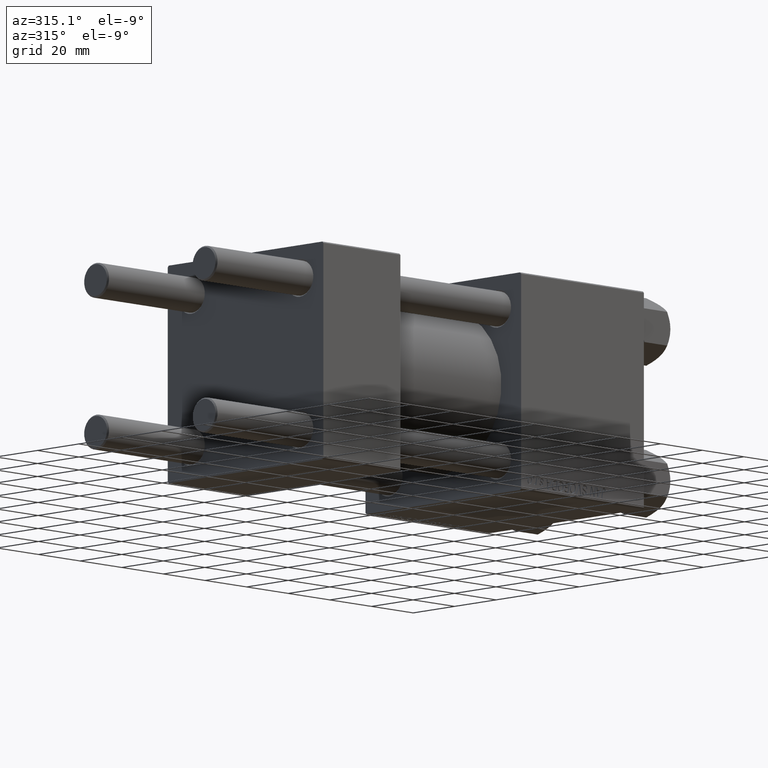
[diagram: clean part render]
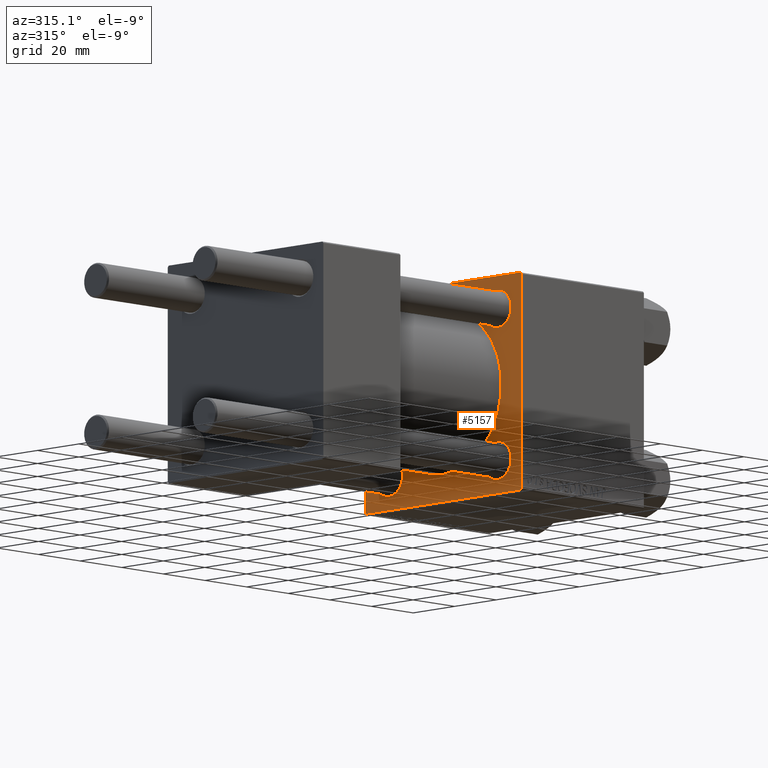
[diagram: same view with one face highlighted and labeled with its STEP entity id]
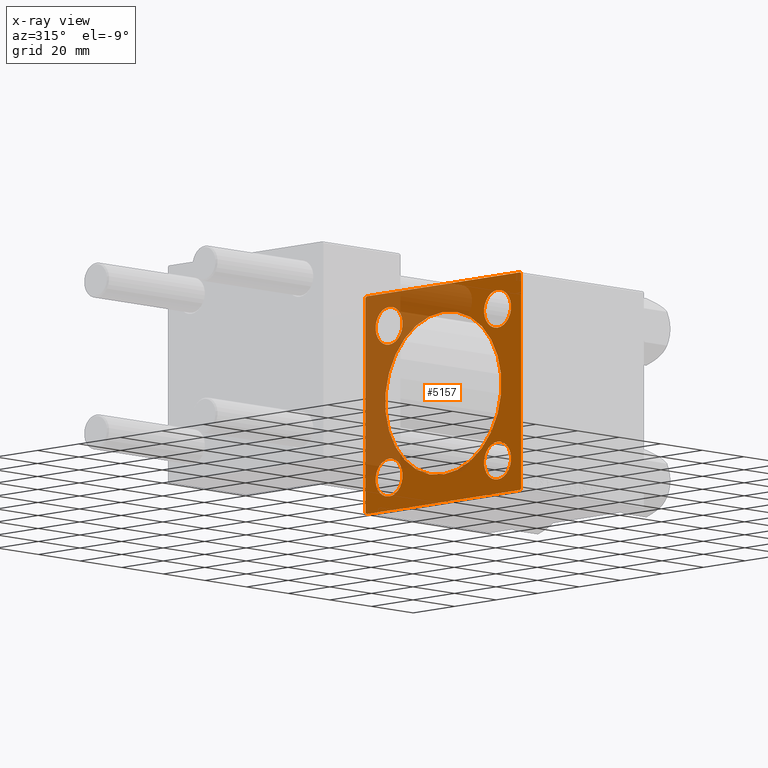
[diagram: x-ray of the same camera — body ghosted, the highlighted face saturated]
A machine part, auxiliary view. The second image highlights one B-rep face of the part: STEP entity #5157.
The next image is the same camera in x-ray: the body ghosted, the highlighted face saturated — about 41% of this face is hidden behind the body in this view.
In plain terms, the highlighted planar face has unit normal (-1, 0, 0).
Its self-contained STEP definition (entity closure, byte-faithful):
#705 = CARTESIAN_POINT ( 'NONE',  ( 95.00000000000000000, -26.14999999999999147, 32.65000000000001279 ) ) ;
#709 = AXIS2_PLACEMENT_3D ( 'NONE', #20319, #1226, #978 ) ;
#871 = EDGE_CURVE ( 'NONE', #30215, #25381, #11397, .T. ) ;
#978 = DIRECTION ( 'NONE',  ( 0.000000000000000000, 0.000000000000000000, 1.000000000000000000 ) ) ;
#1120 = ORIENTED_EDGE ( 'NONE', *, *, #3291, .T. ) ;
#1226 = DIRECTION ( 'NONE',  ( -1.000000000000000000, -0.000000000000000000, 0.000000000000000000 ) ) ;
#1401 = EDGE_CURVE ( 'NONE', #34604, #46325, #10399, .T. ) ;
#1495 = AXIS2_PLACEMENT_3D ( 'NONE', #22646, #49578, #37742 ) ;
#1564 = VERTEX_POINT ( 'NONE', #30623 ) ;
#1799 = CARTESIAN_POINT ( 'NONE',  ( 95.00000000000000000, 26.14999999999999858, 32.65000000000001279 ) ) ;
#1861 = CARTESIAN_POINT ( 'NONE',  ( 95.00000000000000000, -36.99999999999998579, -37.50000000000000000 ) ) ;
#1934 = DIRECTION ( 'NONE',  ( 1.000000000000000000, 0.000000000000000000, -0.000000000000000000 ) ) ;
#2153 = CIRCLE ( 'NONE', #41490, 6.500000000000002665 ) ;
#3185 = LINE ( 'NONE', #11734, #48533 ) ;
#3291 = EDGE_CURVE ( 'NONE', #18091, #11059, #15932, .T. ) ;
#3645 = DIRECTION ( 'NONE',  ( 1.000000000000000000, 0.000000000000000000, -0.000000000000000000 ) ) ;
#3721 = CARTESIAN_POINT ( 'NONE',  ( 95.00000000000000000, -26.14999999999999147, -19.65000000000000213 ) ) ;
#3832 = LINE ( 'NONE', #49354, #15596 ) ;
#4152 = CIRCLE ( 'NONE', #38681, 28.00000000000000000 ) ;
#4421 = EDGE_CURVE ( 'NONE', #30515, #25780, #47962, .T. ) ;
#5007 = FACE_BOUND ( 'NONE', #41426, .T. ) ;
#5014 = CARTESIAN_POINT ( 'NONE',  ( 95.00000000000000000, 26.14999999999999858, 19.64999999999999858 ) ) ;
#5157 = ADVANCED_FACE ( 'NONE', ( #31639, #35406, #23591, #20076, #5007, #8275 ), #8024, .T. ) ;
#5289 = ORIENTED_EDGE ( 'NONE', *, *, #12080, .T. ) ;
#5328 = CARTESIAN_POINT ( 'NONE',  ( 95.00000000000000000, 26.14999999999999858, -26.15000000000000213 ) ) ;
#5470 = CARTESIAN_POINT ( 'NONE',  ( 95.00000000000000000, 26.14999999999999858, 26.15000000000000213 ) ) ;
#5731 = DIRECTION ( 'NONE',  ( 1.000000000000000000, 0.000000000000000000, -0.000000000000000000 ) ) ;
#5961 = EDGE_CURVE ( 'NONE', #11059, #18091, #43319, .T. ) ;
#5973 = CARTESIAN_POINT ( 'NONE',  ( 95.00000000000000000, -26.14999999999999147, -26.15000000000000924 ) ) ;
#6151 = CARTESIAN_POINT ( 'NONE',  ( 95.00000000000000000, -26.14999999999999147, -32.65000000000001990 ) ) ;
#6596 = DIRECTION ( 'NONE',  ( 1.000000000000000000, 0.000000000000000000, -0.000000000000000000 ) ) ;
#7146 = VERTEX_POINT ( 'NONE', #42813 ) ;
#7377 = DIRECTION ( 'NONE',  ( -0.000000000000000000, 0.7071067811865474617, 0.7071067811865474617 ) ) ;
#7628 = AXIS2_PLACEMENT_3D ( 'NONE', #25688, #6596, #18404 ) ;
#7954 = VERTEX_POINT ( 'NONE', #1799 ) ;
#8024 = PLANE ( 'NONE',  #709 ) ;
#8275 = FACE_OUTER_BOUND ( 'NONE', #48257, .T. ) ;
#8396 = ORIENTED_EDGE ( 'NONE', *, *, #9695, .T. ) ;
#9669 = AXIS2_PLACEMENT_3D ( 'NONE', #5328, #13596, #12874 ) ;
#9695 = EDGE_CURVE ( 'NONE', #48060, #16984, #39414, .T. ) ;
#9743 = CIRCLE ( 'NONE', #40281, 6.500000000000002665 ) ;
#10104 = VERTEX_POINT ( 'NONE', #3721 ) ;
#10385 = AXIS2_PLACEMENT_3D ( 'NONE', #26698, #18901, #23151 ) ;
#10399 = CIRCLE ( 'NONE', #48966, 28.00000000000000000 ) ;
#10987 = VERTEX_POINT ( 'NONE', #46479 ) ;
#11059 = VERTEX_POINT ( 'NONE', #705 ) ;
#11397 = LINE ( 'NONE', #19181, #12316 ) ;
#11734 = CARTESIAN_POINT ( 'NONE',  ( 95.00000000000000000, -37.50000000000000000, 37.49999999999997868 ) ) ;
#12080 = EDGE_CURVE ( 'NONE', #15017, #7954, #9743, .T. ) ;
#12316 = VECTOR ( 'NONE', #7377, 1000.000000000000114 ) ;
#12365 = DIRECTION ( 'NONE',  ( 0.000000000000000000, 0.000000000000000000, -1.000000000000000000 ) ) ;
#12874 = DIRECTION ( 'NONE',  ( 0.000000000000000000, 0.000000000000000000, 1.000000000000000000 ) ) ;
#13274 = VECTOR ( 'NONE', #12365, 1000.000000000000000 ) ;
#13321 = VERTEX_POINT ( 'NONE', #6151 ) ;
#13596 = DIRECTION ( 'NONE',  ( 1.000000000000000000, 0.000000000000000000, -0.000000000000000000 ) ) ;
#13962 = DIRECTION ( 'NONE',  ( 0.000000000000000000, -0.7071067811865671127, 0.7071067811865279218 ) ) ;
#14598 = EDGE_CURVE ( 'NONE', #46325, #34604, #4152, .T. ) ;
#15017 = VERTEX_POINT ( 'NONE', #5014 ) ;
#15188 = CARTESIAN_POINT ( 'NONE',  ( 95.00000000000000000, 37.50000000000000000, -37.50000000000000000 ) ) ;
#15266 = AXIS2_PLACEMENT_3D ( 'NONE', #5973, #5731, #36143 ) ;
#15358 = CARTESIAN_POINT ( 'NONE',  ( 95.00000000000000000, 0.000000000000000000, 28.00000000000000000 ) ) ;
#15596 = VECTOR ( 'NONE', #13962, 1000.000000000000000 ) ;
#15932 = CIRCLE ( 'NONE', #1495, 6.500000000000008882 ) ;
#16810 = CIRCLE ( 'NONE', #26452, 6.500000000000008882 ) ;
#16984 = VERTEX_POINT ( 'NONE', #37772 ) ;
#18091 = VERTEX_POINT ( 'NONE', #47400 ) ;
#18350 = VECTOR ( 'NONE', #35886, 999.9999999999998863 ) ;
#18404 = DIRECTION ( 'NONE',  ( 0.000000000000000000, 0.000000000000000000, 1.000000000000000000 ) ) ;
#18804 = ORIENTED_EDGE ( 'NONE', *, *, #42301, .T. ) ;
#18901 = DIRECTION ( 'NONE',  ( 1.000000000000000000, 0.000000000000000000, -0.000000000000000000 ) ) ;
#18957 = ORIENTED_EDGE ( 'NONE', *, *, #1401, .T. ) ;
#18982 = DIRECTION ( 'NONE',  ( 0.000000000000000000, 0.000000000000000000, 1.000000000000000000 ) ) ;
#19082 = CARTESIAN_POINT ( 'NONE',  ( 95.00000000000000000, 26.14999999999999858, -32.65000000000001279 ) ) ;
#19147 = ORIENTED_EDGE ( 'NONE', *, *, #24306, .F. ) ;
#19181 = CARTESIAN_POINT ( 'NONE',  ( 95.00000000000000000, -37.24999999999997158, 37.24999999999997158 ) ) ;
#19220 = DIRECTION ( 'NONE',  ( 0.000000000000000000, -1.000000000000000000, -1.850371707708594316E-16 ) ) ;
#19411 = CARTESIAN_POINT ( 'NONE',  ( 95.00000000000000000, -36.99999999999997158, 37.49999999999997868 ) ) ;
#19853 = CARTESIAN_POINT ( 'NONE',  ( 95.00000000000000000, -37.50000000000000000, 36.99999999999995026 ) ) ;
#20076 = FACE_BOUND ( 'NONE', #43863, .T. ) ;
#20137 = ORIENTED_EDGE ( 'NONE', *, *, #48141, .T. ) ;
#20196 = CARTESIAN_POINT ( 'NONE',  ( 95.00000000000000000, 37.25000000000000000, 37.25000000000000000 ) ) ;
#20319 = CARTESIAN_POINT ( 'NONE',  ( 95.00000000000000000, 0.000000000000000000, 0.000000000000000000 ) ) ;
#20387 = LINE ( 'NONE', #35718, #13274 ) ;
#21439 = EDGE_CURVE ( 'NONE', #32965, #7146, #3832, .T. ) ;
#22028 = LINE ( 'NONE', #20196, #36105 ) ;
#22646 = CARTESIAN_POINT ( 'NONE',  ( 95.00000000000000000, -26.14999999999999147, 26.15000000000000924 ) ) ;
#23151 = DIRECTION ( 'NONE',  ( 0.000000000000000000, 0.000000000000000000, 1.000000000000000000 ) ) ;
#23157 = EDGE_CURVE ( 'NONE', #30215, #7146, #3185, .T. ) ;
#23524 = EDGE_CURVE ( 'NONE', #25780, #32965, #30010, .T. ) ;
#23591 = FACE_BOUND ( 'NONE', #38251, .T. ) ;
#23705 = DIRECTION ( 'NONE',  ( 0.000000000000000000, 0.7071067811865474617, -0.7071067811865474617 ) ) ;
#24306 = EDGE_CURVE ( 'NONE', #10987, #25381, #27015, .T. ) ;
#24372 = DIRECTION ( 'NONE',  ( 1.000000000000000000, 0.000000000000000000, 0.000000000000000000 ) ) ;
#24463 = EDGE_CURVE ( 'NONE', #10104, #13321, #29281, .T. ) ;
#24613 = CARTESIAN_POINT ( 'NONE',  ( 95.00000000000000000, 0.000000000000000000, 0.000000000000000000 ) ) ;
#24687 = EDGE_CURVE ( 'NONE', #1564, #30515, #20387, .T. ) ;
#25261 = CARTESIAN_POINT ( 'NONE',  ( 95.00000000000000000, 0.000000000000000000, 0.000000000000000000 ) ) ;
#25381 = VERTEX_POINT ( 'NONE', #19411 ) ;
#25688 = CARTESIAN_POINT ( 'NONE',  ( 95.00000000000000000, -26.14999999999999147, -26.15000000000000924 ) ) ;
#25780 = VERTEX_POINT ( 'NONE', #45848 ) ;
#26452 = AXIS2_PLACEMENT_3D ( 'NONE', #44050, #47099, #31743 ) ;
#26698 = CARTESIAN_POINT ( 'NONE',  ( 95.00000000000000000, -26.14999999999999147, 26.15000000000000924 ) ) ;
#27015 = LINE ( 'NONE', #30272, #42156 ) ;
#28730 = EDGE_CURVE ( 'NONE', #7954, #15017, #2153, .T. ) ;
#29281 = CIRCLE ( 'NONE', #7628, 6.500000000000008882 ) ;
#30010 = LINE ( 'NONE', #15188, #30102 ) ;
#30102 = VECTOR ( 'NONE', #45364, 1000.000000000000000 ) ;
#30215 = VERTEX_POINT ( 'NONE', #19853 ) ;
#30272 = CARTESIAN_POINT ( 'NONE',  ( 95.00000000000000000, 37.50000000000000000, 37.49999999999999289 ) ) ;
#30515 = VERTEX_POINT ( 'NONE', #31793 ) ;
#30623 = CARTESIAN_POINT ( 'NONE',  ( 95.00000000000000000, 37.50000000000000000, 36.99999999999999289 ) ) ;
#31560 = ORIENTED_EDGE ( 'NONE', *, *, #23524, .T. ) ;
#31639 = FACE_BOUND ( 'NONE', #45315, .T. ) ;
#31743 = DIRECTION ( 'NONE',  ( 0.000000000000000000, 0.000000000000000000, 1.000000000000000000 ) ) ;
#31793 = CARTESIAN_POINT ( 'NONE',  ( 95.00000000000000000, 37.50000000000000000, -36.99999999999999289 ) ) ;
#32965 = VERTEX_POINT ( 'NONE', #1861 ) ;
#33045 = ORIENTED_EDGE ( 'NONE', *, *, #28730, .T. ) ;
#33324 = CARTESIAN_POINT ( 'NONE',  ( 95.00000000000000000, 3.429011037612588487E-15, -28.00000000000000000 ) ) ;
#34451 = ORIENTED_EDGE ( 'NONE', *, *, #43147, .T. ) ;
#34604 = VERTEX_POINT ( 'NONE', #15358 ) ;
#35322 = CIRCLE ( 'NONE', #15266, 6.500000000000008882 ) ;
#35406 = FACE_BOUND ( 'NONE', #48268, .T. ) ;
#35718 = CARTESIAN_POINT ( 'NONE',  ( 95.00000000000000000, 37.50000000000000000, 37.49999999999999289 ) ) ;
#35886 = DIRECTION ( 'NONE',  ( -0.000000000000000000, -0.7071067811865425767, -0.7071067811865525687 ) ) ;
#36105 = VECTOR ( 'NONE', #23705, 1000.000000000000114 ) ;
#36113 = ORIENTED_EDGE ( 'NONE', *, *, #5961, .T. ) ;
#36143 = DIRECTION ( 'NONE',  ( 0.000000000000000000, 0.000000000000000000, 1.000000000000000000 ) ) ;
#37742 = DIRECTION ( 'NONE',  ( 0.000000000000000000, 0.000000000000000000, 1.000000000000000000 ) ) ;
#37772 = CARTESIAN_POINT ( 'NONE',  ( 95.00000000000000000, 26.14999999999999858, -19.64999999999999503 ) ) ;
#38080 = CARTESIAN_POINT ( 'NONE',  ( 95.00000000000000000, 26.14999999999999858, 26.15000000000000213 ) ) ;
#38251 = EDGE_LOOP ( 'NONE', ( #18804, #8396 ) ) ;
#38681 = AXIS2_PLACEMENT_3D ( 'NONE', #25261, #48656, #48167 ) ;
#39414 = CIRCLE ( 'NONE', #9669, 6.500000000000008882 ) ;
#39717 = DIRECTION ( 'NONE',  ( 0.000000000000000000, 0.000000000000000000, -1.000000000000000000 ) ) ;
#40281 = AXIS2_PLACEMENT_3D ( 'NONE', #5470, #1934, #47959 ) ;
#41426 = EDGE_LOOP ( 'NONE', ( #18957, #49593 ) ) ;
#41490 = AXIS2_PLACEMENT_3D ( 'NONE', #38080, #3645, #18982 ) ;
#42156 = VECTOR ( 'NONE', #19220, 1000.000000000000000 ) ;
#42301 = EDGE_CURVE ( 'NONE', #16984, #48060, #16810, .T. ) ;
#42665 = DIRECTION ( 'NONE',  ( 0.000000000000000000, -9.251858538542972814E-17, -1.000000000000000000 ) ) ;
#42813 = CARTESIAN_POINT ( 'NONE',  ( 95.00000000000000000, -37.50000000000000711, -37.00000000000000711 ) ) ;
#43147 = EDGE_CURVE ( 'NONE', #10987, #1564, #22028, .T. ) ;
#43289 = ORIENTED_EDGE ( 'NONE', *, *, #21439, .T. ) ;
#43319 = CIRCLE ( 'NONE', #10385, 6.500000000000008882 ) ;
#43769 = ORIENTED_EDGE ( 'NONE', *, *, #24463, .T. ) ;
#43863 = EDGE_LOOP ( 'NONE', ( #43769, #20137 ) ) ;
#44050 = CARTESIAN_POINT ( 'NONE',  ( 95.00000000000000000, 26.14999999999999858, -26.15000000000000213 ) ) ;
#44556 = ORIENTED_EDGE ( 'NONE', *, *, #24687, .T. ) ;
#44559 = ORIENTED_EDGE ( 'NONE', *, *, #23157, .F. ) ;
#45315 = EDGE_LOOP ( 'NONE', ( #36113, #1120 ) ) ;
#45364 = DIRECTION ( 'NONE',  ( 0.000000000000000000, -1.000000000000000000, 0.000000000000000000 ) ) ;
#45848 = CARTESIAN_POINT ( 'NONE',  ( 95.00000000000000000, 37.00000000000000000, -37.50000000000000000 ) ) ;
#46325 = VERTEX_POINT ( 'NONE', #33324 ) ;
#46330 = ORIENTED_EDGE ( 'NONE', *, *, #4421, .T. ) ;
#46479 = CARTESIAN_POINT ( 'NONE',  ( 95.00000000000000000, 37.00000000000000000, 37.49999999999999289 ) ) ;
#46511 = ORIENTED_EDGE ( 'NONE', *, *, #871, .T. ) ;
#47099 = DIRECTION ( 'NONE',  ( 1.000000000000000000, 0.000000000000000000, -0.000000000000000000 ) ) ;
#47400 = CARTESIAN_POINT ( 'NONE',  ( 95.00000000000000000, -26.14999999999999147, 19.65000000000000568 ) ) ;
#47721 = CARTESIAN_POINT ( 'NONE',  ( 95.00000000000000000, 37.25000000000026290, -37.24999999999974420 ) ) ;
#47959 = DIRECTION ( 'NONE',  ( 0.000000000000000000, 0.000000000000000000, 1.000000000000000000 ) ) ;
#47962 = LINE ( 'NONE', #47721, #18350 ) ;
#48060 = VERTEX_POINT ( 'NONE', #19082 ) ;
#48141 = EDGE_CURVE ( 'NONE', #13321, #10104, #35322, .T. ) ;
#48167 = DIRECTION ( 'NONE',  ( 0.000000000000000000, 0.000000000000000000, -1.000000000000000000 ) ) ;
#48257 = EDGE_LOOP ( 'NONE', ( #31560, #43289, #44559, #46511, #19147, #34451, #44556, #46330 ) ) ;
#48268 = EDGE_LOOP ( 'NONE', ( #33045, #5289 ) ) ;
#48533 = VECTOR ( 'NONE', #42665, 1000.000000000000000 ) ;
#48656 = DIRECTION ( 'NONE',  ( 1.000000000000000000, 0.000000000000000000, 0.000000000000000000 ) ) ;
#48966 = AXIS2_PLACEMENT_3D ( 'NONE', #24613, #24372, #39717 ) ;
#49354 = CARTESIAN_POINT ( 'NONE',  ( 95.00000000000000000, -37.24999999999896261, -37.25000000000103029 ) ) ;
#49578 = DIRECTION ( 'NONE',  ( 1.000000000000000000, 0.000000000000000000, -0.000000000000000000 ) ) ;
#49593 = ORIENTED_EDGE ( 'NONE', *, *, #14598, .T. ) ;